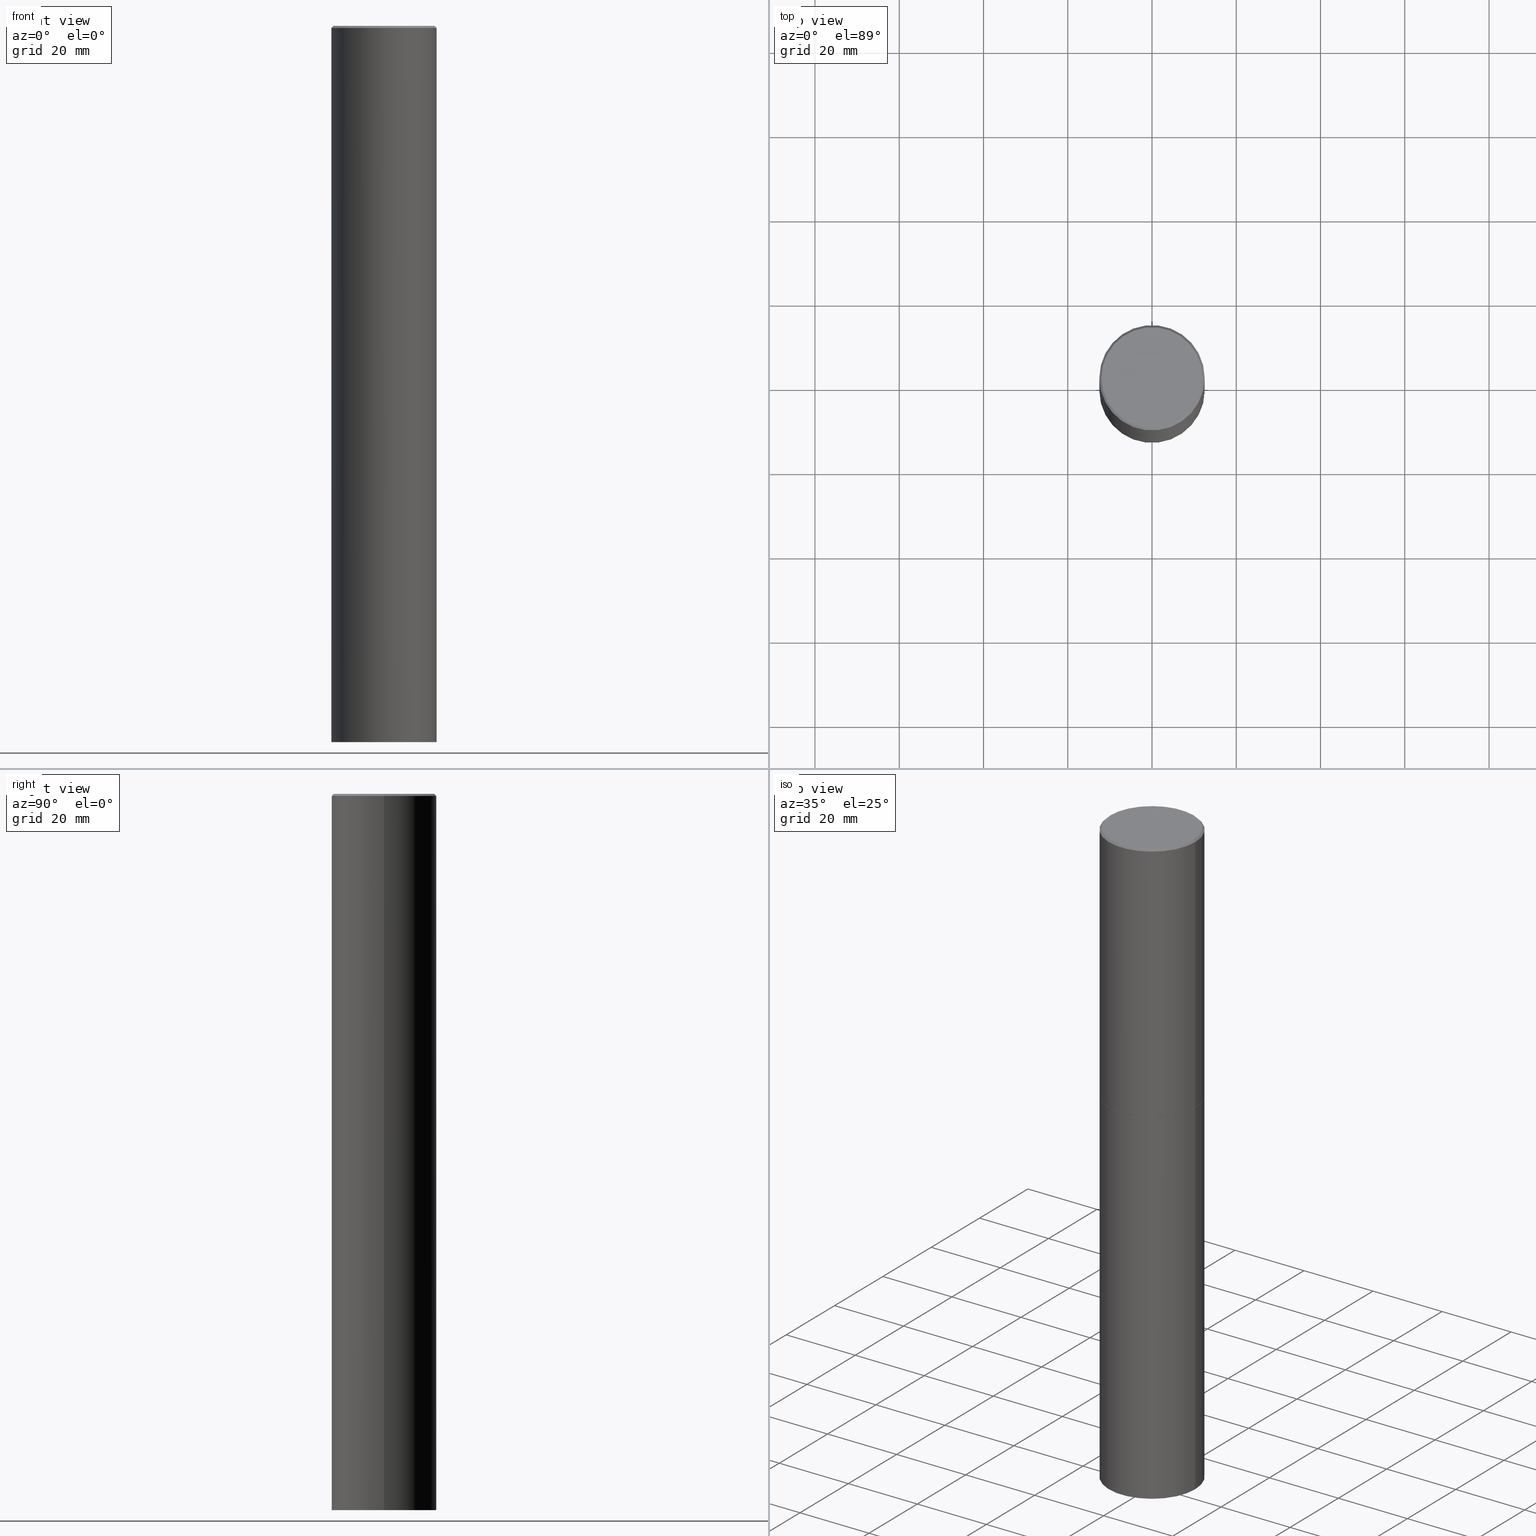
[diagram: canonical four-view strip — front | top / right | iso, engineering-drawing reading convention]
A machine part, canonical four-view strip (front | top / right | iso — engineering-drawing reading convention). The complete STEP part file that produces these views, byte-faithful:
ISO-10303-21;
HEADER;
FILE_DESCRIPTION (( 'STEP AP203' ),
    '1' );
FILE_NAME ('74896.STEP',
    '2024-05-03T15:04:39',
    ( '' ),
    ( '' ),
    'SwSTEP 2.0',
    'SolidWorks 2023',
    '' );
FILE_SCHEMA (( 'CONFIG_CONTROL_DESIGN' ));
ENDSEC;

DATA;
#1 = PLANE ( 'NONE',  #318 ) ;
#2 = LINE ( 'NONE', #257, #96 ) ;
#3 = EDGE_LOOP ( 'NONE', ( #47, #134, #273, #227 ) ) ;
#4 = APPROVAL_DATE_TIME ( #183, #337 ) ;
#5 = EDGE_LOOP ( 'NONE', ( #293, #251, #283, #277 ) ) ;
#6 = VERTEX_POINT ( 'NONE', #141 ) ;
#7 = CARTESIAN_POINT ( 'NONE',  ( 4.890937612370296805E-31, -6.982962677686323656E-17, -0.02000000000000009409 ) ) ;
#8 = DIRECTION ( 'NONE',  ( 1.000000000000000000, -6.982962677686265922E-15, 4.876006802227162976E-29 ) ) ;
#9 = CARTESIAN_POINT ( 'NONE',  ( 0.000000000000000000, 0.000000000000000000, 0.000000000000000000 ) ) ;
#10 = DIRECTION ( 'NONE',  ( 1.000000000000000000, -6.982962677686265922E-15, 4.876176775795935793E-29 ) ) ;
#11 = AXIS2_PLACEMENT_3D ( 'NONE', #209, #335, #327 ) ;
#12 = LOCAL_TIME ( 11, 4, 39.00000000000000000, #50 ) ;
#13 = ORIENTED_EDGE ( 'NONE', *, *, #329, .T. ) ;
#14 = ORIENTED_EDGE ( 'NONE', *, *, #226, .F. ) ;
#15 = PERSON_AND_ORGANIZATION ( #109, #336 ) ;
#16 = AXIS2_PLACEMENT_3D ( 'NONE', #231, #297, #347 ) ;
#17 = VERTEX_POINT ( 'NONE', #118 ) ;
#18 = DATE_AND_TIME ( #189, #12 ) ;
#19 = ADVANCED_FACE ( 'NONE', ( #137 ), #53, .F. ) ;
#20 = CARTESIAN_POINT ( 'NONE',  ( 0.4921499999999996988, -3.446223716380120377E-15, -0.02000000000000009409 ) ) ;
#21 = VERTEX_POINT ( 'NONE', #108 ) ;
#22 = LENGTH_MEASURE_WITH_UNIT ( LENGTH_MEASURE( 0.02539999999999999897 ), #144 );
#23 = VERTEX_POINT ( 'NONE', #55 ) ;
#24 = FACE_OUTER_BOUND ( 'NONE', #131, .T. ) ;
#25 = CIRCLE ( 'NONE', #309, 0.4921499999999996988 ) ;
#26 = CARTESIAN_POINT ( 'NONE',  ( 4.890937612370296805E-31, -6.982962677686323656E-17, -0.02000000000000009409 ) ) ;
#27 = DIRECTION ( 'NONE',  ( 2.438088387897960049E-29, -3.491481338843145188E-15, -1.000000000000000000 ) ) ;
#28 = DIRECTION ( 'NONE',  ( 2.445468806185136597E-29, -3.491481338843145583E-15, -1.000000000000000000 ) ) ;
#29 = ADVANCED_FACE ( 'NONE', ( #162 ), #364, .T. ) ;
#30 = DIRECTION ( 'NONE',  ( 1.000000000000000000, -6.982962677686265922E-15, 0.000000000000000000 ) ) ;
#31 = ORIENTED_EDGE ( 'NONE', *, *, #168, .F. ) ;
#32 = ORIENTED_EDGE ( 'NONE', *, *, #148, .T. ) ;
#33 = AXIS2_PLACEMENT_3D ( 'NONE', #196, #28, #258 ) ;
#34 = CARTESIAN_POINT ( 'NONE',  ( 0.4921499999999999764, -3.436665081823295777E-15, 2.399810400207969603E-29 ) ) ;
#35 = DIRECTION ( 'NONE',  ( -2.445468806185136597E-29, 3.491481338843145583E-15, 1.000000000000000000 ) ) ;
#36 = CC_DESIGN_DATE_AND_TIME_ASSIGNMENT ( #105, #333, ( #57 ) ) ;
#37 = DIRECTION ( 'NONE',  ( 2.445468806185136597E-29, -3.491481338843145583E-15, -1.000000000000000000 ) ) ;
#38 = CARTESIAN_POINT ( 'NONE',  ( -0.4921499999999999764, -1.299821836318722399E-14, -6.692899999999999849 ) ) ;
#39 = APPROVAL_PERSON_ORGANIZATION ( #240, #49, #338 ) ;
#40 = APPROVAL ( #102, 'UNSPECIFIED' ) ;
#41 = AXIS2_PLACEMENT_3D ( 'NONE', #219, #295, #65 ) ;
#42 = AXIS2_PLACEMENT_3D ( 'NONE', #63, #88, #142 ) ;
#43 = APPROVAL_DATE_TIME ( #305, #49 ) ;
#44 = VERTEX_POINT ( 'NONE', #69 ) ;
#45 =( NAMED_UNIT ( * ) PLANE_ANGLE_UNIT ( ) SI_UNIT ( $, .RADIAN. ) );
#46 = DIRECTION ( 'NONE',  ( -2.445468806185136597E-29, 3.491481338843145583E-15, 1.000000000000000000 ) ) ;
#47 = ORIENTED_EDGE ( 'NONE', *, *, #323, .T. ) ;
#48 = SECURITY_CLASSIFICATION_LEVEL ( 'unclassified' ) ;
#49 = APPROVAL ( #331, 'UNSPECIFIED' ) ;
#50 = COORDINATED_UNIVERSAL_TIME_OFFSET ( 5, 0, .BEHIND. ) ;
#51 = AXIS2_PLACEMENT_3D ( 'NONE', #116, #91, #230 ) ;
#52 = COORDINATED_UNIVERSAL_TIME_OFFSET ( 5, 0, .BEHIND. ) ;
#53 = PLANE ( 'NONE',  #261 ) ;
#54 = EDGE_LOOP ( 'NONE', ( #74, #281, #62, #14 ) ) ;
#55 = CARTESIAN_POINT ( 'NONE',  ( -0.4921499999999996988, 3.366835455046430506E-15, -0.02000000000000009409 ) ) ;
#56 = DIRECTION ( 'NONE',  ( -2.445468806185136597E-29, 3.491481338843145583E-15, 1.000000000000000000 ) ) ;
#57 = SECURITY_CLASSIFICATION ( '', '', #48 ) ;
#58 = ORIENTED_EDGE ( 'NONE', *, *, #323, .F. ) ;
#59 = EDGE_CURVE ( 'NONE', #6, #260, #181, .T. ) ;
#60 = MANIFOLD_SOLID_BREP ( 'Body-Move/Copy2[1]', #265 ) ;
#61 = CYLINDRICAL_SURFACE ( 'NONE', #302, 0.4921499999999998098 ) ;
#62 = ORIENTED_EDGE ( 'NONE', *, *, #94, .T. ) ;
#63 = CARTESIAN_POINT ( 'NONE',  ( 6.739467482965618232E-29, -9.622173421717824390E-15, -2.755900000000000016 ) ) ;
#64 = DIRECTION ( 'NONE',  ( 2.438088387897960049E-29, -3.491481338843145188E-15, -1.000000000000000000 ) ) ;
#65 = DIRECTION ( 'NONE',  ( 1.000000000000000000, -6.982962677686265922E-15, 0.000000000000000000 ) ) ;
#66 = VECTOR ( 'NONE', #173, 39.37007874015748143 ) ;
#67 = CARTESIAN_POINT ( 'NONE',  ( 3.436665081823363224E-15, 0.4921499999999903174, -2.755900000000001793 ) ) ;
#68 = DESIGN_CONTEXT ( 'detailed design', #276, 'design' ) ;
#69 = CARTESIAN_POINT ( 'NONE',  ( -0.4921499999999999764, -1.299821836318722399E-14, -2.755900000000000016 ) ) ;
#70 = CONICAL_SURFACE ( 'NONE', #33, 0.4921499999999996988, 0.7853981633974472798 ) ;
#71 = CALENDAR_DATE ( 2024, 3, 5 ) ;
#72 = VERTEX_POINT ( 'NONE', #241 ) ;
#73 = PERSON_AND_ORGANIZATION_ROLE ( 'creator' ) ;
#74 = ORIENTED_EDGE ( 'NONE', *, *, #239, .F. ) ;
#75 = CC_DESIGN_PERSON_AND_ORGANIZATION_ASSIGNMENT ( #15, #73, ( #363 ) ) ;
#76 = EDGE_LOOP ( 'NONE', ( #80, #290, #211, #307 ) ) ;
#77 = PERSON_AND_ORGANIZATION ( #109, #336 ) ;
#78 = CARTESIAN_POINT ( 'NONE',  ( 6.739467482965619353E-29, -9.622173421717825968E-15, -2.755900000000000460 ) ) ;
#79 = DIRECTION ( 'NONE',  ( 1.000000000000000000, -6.982962677686268288E-15, 0.000000000000000000 ) ) ;
#80 = ORIENTED_EDGE ( 'NONE', *, *, #85, .T. ) ;
#81 = EDGE_CURVE ( 'NONE', #104, #330, #301, .T. ) ;
#82 = AXIS2_PLACEMENT_3D ( 'NONE', #236, #238, #324 ) ;
#83 = CARTESIAN_POINT ( 'NONE',  ( 0.4921499999999999764, -2.680480053456658516E-14, -6.692899999999999849 ) ) ;
#84 = EDGE_LOOP ( 'NONE', ( #256, #31 ) ) ;
#85 = EDGE_CURVE ( 'NONE', #194, #249, #308, .T. ) ;
#86 = DIRECTION ( 'NONE',  ( -2.445468806185136597E-29, 3.491481338843145583E-15, 1.000000000000000000 ) ) ;
#87 = CYLINDRICAL_SURFACE ( 'NONE', #112, 0.4921499999999999764 ) ;
#88 = DIRECTION ( 'NONE',  ( -2.445468806185136597E-29, 3.491481338843145583E-15, 1.000000000000000000 ) ) ;
#89 = DIRECTION ( 'NONE',  ( -0.7071067811865467956, 2.468850131082249172E-15, -0.7071067811865482389 ) ) ;
#90 = AXIS2_PLACEMENT_3D ( 'NONE', #9, #346, #10 ) ;
#91 = DIRECTION ( 'NONE',  ( -2.445468806185136597E-29, 3.491481338843145583E-15, 1.000000000000000000 ) ) ;
#92 = CARTESIAN_POINT ( 'NONE',  ( 1.636727817291649966E-28, -2.336813545274328780E-14, -6.692899999999999849 ) ) ;
#93 = LINE ( 'NONE', #34, #357 ) ;
#94 = EDGE_CURVE ( 'NONE', #260, #23, #220, .T. ) ;
#95 = AXIS2_PLACEMENT_3D ( 'NONE', #303, #46, #152 ) ;
#96 = VECTOR ( 'NONE', #287, 39.37007874015748143 ) ;
#97 = CC_DESIGN_PERSON_AND_ORGANIZATION_ASSIGNMENT ( #99, #359, ( #57 ) ) ;
#98 = DIRECTION ( 'NONE',  ( -0.7071067811864267805, 7.493145998869918709E-15, 0.7071067811866682540 ) ) ;
#99 = PERSON_AND_ORGANIZATION ( #109, #336 ) ;
#100 = ORIENTED_EDGE ( 'NONE', *, *, #232, .F. ) ;
#101 = CONICAL_SURFACE ( 'NONE', #366, 0.4921499999999996988, 0.7853981633974472798 ) ;
#102 = APPROVAL_STATUS ( 'not_yet_approved' ) ;
#103 = ADVANCED_FACE ( 'NONE', ( #174 ), #101, .T. ) ;
#104 = VERTEX_POINT ( 'NONE', #145 ) ;
#105 = DATE_AND_TIME ( #218, #243 ) ;
#106 = APPROVAL_DATE_TIME ( #18, #40 ) ;
#107 = AXIS2_PLACEMENT_3D ( 'NONE', #284, #56, #110 ) ;
#108 = CARTESIAN_POINT ( 'NONE',  ( 0.4921499999999999764, -1.305883850354112017E-14, -2.755900000000000016 ) ) ;
#109 = PERSON ( 'UNSPECIFIED', 'UNSPECIFIED', 'UNSPECIFIED', ('UNSPECIFIED'), ('UNSPECIFIED'), ('UNSPECIFIED') ) ;
#110 = DIRECTION ( 'NONE',  ( 1.000000000000000000, -6.982962677686265922E-15, 0.000000000000000000 ) ) ;
#111 = ORIENTED_EDGE ( 'NONE', *, *, #239, .T. ) ;
#112 = AXIS2_PLACEMENT_3D ( 'NONE', #229, #198, #350 ) ;
#113 = ORIENTED_EDGE ( 'NONE', *, *, #155, .T. ) ;
#114 = CC_DESIGN_SECURITY_CLASSIFICATION ( #57, ( #326 ) ) ;
#115 = CC_DESIGN_PERSON_AND_ORGANIZATION_ASSIGNMENT ( #130, #361, ( #326 ) ) ;
#116 = CARTESIAN_POINT ( 'NONE',  ( 6.739467482965619353E-29, -9.622173421717825968E-15, -2.755900000000000460 ) ) ;
#117 = DIRECTION ( 'NONE',  ( -1.000000000000000000, 6.982962677686265922E-15, 0.000000000000000000 ) ) ;
#118 = CARTESIAN_POINT ( 'NONE',  ( -0.4911499999999999755, -6.127044320683872466E-15, -2.755900000000000460 ) ) ;
#119 = CARTESIAN_POINT ( 'NONE',  ( -0.4921499999999999764, -1.347319709534588852E-15, -2.754900000000000126 ) ) ;
#120 = CARTESIAN_POINT ( 'NONE',  ( -0.4921499999999996988, 3.366835455046430506E-15, -0.02000000000000009409 ) ) ;
#121 = CARTESIAN_POINT ( 'NONE',  ( 0.4921499999999998098, -3.436665081823294593E-15, 2.399810400207968762E-29 ) ) ;
#122 = EDGE_CURVE ( 'NONE', #330, #104, #157, .T. ) ;
#123 = CARTESIAN_POINT ( 'NONE',  ( 6.739467482965619353E-29, -9.622173421717825968E-15, -2.755900000000000460 ) ) ;
#124 = FACE_OUTER_BOUND ( 'NONE', #193, .T. ) ;
#125 = ADVANCED_FACE ( 'NONE', ( #320 ), #321, .T. ) ;
#126 = VECTOR ( 'NONE', #98, 39.37007874015748143 ) ;
#127 = ORIENTED_EDGE ( 'NONE', *, *, #135, .F. ) ;
#128 = APPROVAL_PERSON_ORGANIZATION ( #77, #337, #325 ) ;
#129 = ORIENTED_EDGE ( 'NONE', *, *, #59, .F. ) ;
#130 = PERSON_AND_ORGANIZATION ( #109, #336 ) ;
#131 = EDGE_LOOP ( 'NONE', ( #58, #127 ) ) ;
#132 = DIRECTION ( 'NONE',  ( 1.000000000000000000, 0.000000000000000000, 0.000000000000000000 ) ) ;
#133 = PLANE ( 'NONE',  #204 ) ;
#134 = ORIENTED_EDGE ( 'NONE', *, *, #232, .T. ) ;
#135 = EDGE_CURVE ( 'NONE', #17, #247, #140, .T. ) ;
#136 = VECTOR ( 'NONE', #89, 39.37007874015748143 ) ;
#137 = FACE_OUTER_BOUND ( 'NONE', #161, .T. ) ;
#138 = ORIENTED_EDGE ( 'NONE', *, *, #122, .F. ) ;
#139 = EDGE_CURVE ( 'NONE', #194, #21, #93, .T. ) ;
#140 = CIRCLE ( 'NONE', #253, 0.4911499999999999755 ) ;
#141 = CARTESIAN_POINT ( 'NONE',  ( 0.4721499999999996255, -3.342703923013973396E-15, 8.537024980224040028E-18 ) ) ;
#142 = DIRECTION ( 'NONE',  ( 1.000000000000000000, -6.982962677686265922E-15, 0.000000000000000000 ) ) ;
#143 = LINE ( 'NONE', #120, #136 ) ;
#144 =( LENGTH_UNIT ( ) NAMED_UNIT ( * ) SI_UNIT ( $, .METRE. ) );
#145 = CARTESIAN_POINT ( 'NONE',  ( 0.4921499999999999764, -1.305534702220227716E-14, -2.754900000000000126 ) ) ;
#146 = CIRCLE ( 'NONE', #107, 0.4921499999999999764 ) ;
#147 = LINE ( 'NONE', #121, #349 ) ;
#148 = EDGE_CURVE ( 'NONE', #44, #21, #353, .T. ) ;
#149 = CIRCLE ( 'NONE', #51, 0.4911499999999999755 ) ;
#150 = PRODUCT_DEFINITION_SHAPE ( 'NONE', 'NONE',  #363 ) ;
#151 = PERSON_AND_ORGANIZATION_ROLE ( 'design_supplier' ) ;
#152 = DIRECTION ( 'NONE',  ( 1.000000000000000000, -6.982962677686265922E-15, 0.000000000000000000 ) ) ;
#153 =( CONVERSION_BASED_UNIT ( 'INCH', #22 ) LENGTH_UNIT ( ) NAMED_UNIT ( #225 ) );
#154 = EDGE_LOOP ( 'NONE', ( #315, #185, #360, #340 ) ) ;
#155 = EDGE_CURVE ( 'NONE', #330, #23, #319, .T. ) ;
#156 = DIRECTION ( 'NONE',  ( -2.445468806185136597E-29, 3.491481338843145583E-15, 1.000000000000000000 ) ) ;
#157 = CIRCLE ( 'NONE', #16, 0.4921499999999999764 ) ;
#158 = APPROVAL_ROLE ( '' ) ;
#159 = ORIENTED_EDGE ( 'NONE', *, *, #208, .F. ) ;
#160 = CC_DESIGN_PERSON_AND_ORGANIZATION_ASSIGNMENT ( #271, #151, ( #326 ) ) ;
#161 = EDGE_LOOP ( 'NONE', ( #188, #111 ) ) ;
#162 = FACE_OUTER_BOUND ( 'NONE', #3, .T. ) ;
#163 = DIRECTION ( 'NONE',  ( 1.000000000000000000, -6.982962677686265922E-15, 4.876176775795935793E-29 ) ) ;
#164 = APPLICATION_CONTEXT ( 'configuration controlled 3d designs of mechanical parts and assemblies' ) ;
#165 = LOCAL_TIME ( 11, 4, 39.00000000000000000, #300 ) ;
#166 = CARTESIAN_POINT ( 'NONE',  ( 6.739467482965619353E-29, -9.622173421717825968E-15, -2.755900000000000460 ) ) ;
#167 = DIRECTION ( 'NONE',  ( -2.445468806185136597E-29, 3.491481338843145583E-15, 1.000000000000000000 ) ) ;
#168 = EDGE_CURVE ( 'NONE', #249, #194, #237, .T. ) ;
#169 = CARTESIAN_POINT ( 'NONE',  ( 0.000000000000000000, 0.000000000000000000, 0.000000000000000000 ) ) ;
#170 = CLOSED_SHELL ( 'NONE', ( #29, #255, #103, #356, #203, #263, #299, #19 ) ) ;
#171 = CARTESIAN_POINT ( 'NONE',  ( -2.087702828670439639E-46, 2.980686340760894400E-32, 8.537024980200822558E-18 ) ) ;
#172 = APPROVAL_PERSON_ORGANIZATION ( #180, #40, #158 ) ;
#173 = DIRECTION ( 'NONE',  ( -2.445468806185136877E-29, 3.491481338843145188E-15, 1.000000000000000000 ) ) ;
#174 = FACE_OUTER_BOUND ( 'NONE', #54, .T. ) ;
#175 = CARTESIAN_POINT ( 'NONE',  ( 0.4911499999999999755, -1.305185554086343731E-14, -2.755900000000000460 ) ) ;
#176 = CARTESIAN_POINT ( 'NONE',  ( -0.4911499999999999755, -6.132342775032094079E-15, -2.755900000000000460 ) ) ;
#177 = LOCAL_TIME ( 11, 4, 39.00000000000000000, #52 ) ;
#178 = LINE ( 'NONE', #298, #262 ) ;
#179 = CC_DESIGN_DATE_AND_TIME_ASSIGNMENT ( #222, #207, ( #363 ) ) ;
#180 = PERSON_AND_ORGANIZATION ( #109, #336 ) ;
#181 = LINE ( 'NONE', #20, #200 ) ;
#182 = AXIS2_PLACEMENT_3D ( 'NONE', #92, #233, #30 ) ;
#183 = DATE_AND_TIME ( #71, #177 ) ;
#184 = ADVANCED_FACE ( 'NONE', ( #202 ), #87, .T. ) ;
#185 = ORIENTED_EDGE ( 'NONE', *, *, #168, .T. ) ;
#186 = CALENDAR_DATE ( 2024, 3, 5 ) ;
#187 = CARTESIAN_POINT ( 'NONE',  ( 0.000000000000000000, 0.000000000000000000, 0.000000000000000000 ) ) ;
#188 = ORIENTED_EDGE ( 'NONE', *, *, #208, .T. ) ;
#189 = CALENDAR_DATE ( 2024, 3, 5 ) ;
#190 = CARTESIAN_POINT ( 'NONE',  ( 0.4921499999999996988, -3.446223716380120377E-15, -0.02000000000000009409 ) ) ;
#191 = COORDINATED_UNIVERSAL_TIME_OFFSET ( 5, 0, .BEHIND. ) ;
#192 = CARTESIAN_POINT ( 'NONE',  ( 6.739467482965618232E-29, -9.622173421717824390E-15, -2.755900000000000016 ) ) ;
#193 = EDGE_LOOP ( 'NONE', ( #358, #113, #244, #215 ) ) ;
#194 = VERTEX_POINT ( 'NONE', #83 ) ;
#195 = CC_DESIGN_APPROVAL ( #40, ( #363 ) ) ;
#196 = CARTESIAN_POINT ( 'NONE',  ( 4.890937612370296805E-31, -6.982962677686323656E-17, -0.02000000000000009409 ) ) ;
#197 = FACE_OUTER_BOUND ( 'NONE', #5, .T. ) ;
#198 = DIRECTION ( 'NONE',  ( -2.445468806185136597E-29, 3.491481338843145583E-15, 1.000000000000000000 ) ) ;
#199 = FACE_OUTER_BOUND ( 'NONE', #84, .T. ) ;
#200 = VECTOR ( 'NONE', #362, 39.37007874015748143 ) ;
#201 = LINE ( 'NONE', #176, #126 ) ;
#202 = FACE_OUTER_BOUND ( 'NONE', #154, .T. ) ;
#203 = ADVANCED_FACE ( 'NONE', ( #197 ), #61, .T. ) ;
#204 = AXIS2_PLACEMENT_3D ( 'NONE', #192, #312, #163 ) ;
#205 = UNCERTAINTY_MEASURE_WITH_UNIT (LENGTH_MEASURE( 1.000000000000000082E-05 ), #153, 'distance_accuracy_value', 'NONE');
#206 = PRODUCT ( '74896', '74896', '', ( #242 ) ) ;
#207 = DATE_TIME_ROLE ( 'creation_date' ) ;
#208 = EDGE_CURVE ( 'NONE', #72, #6, #343, .T. ) ;
#209 = CARTESIAN_POINT ( 'NONE',  ( 1.636727817291649966E-28, -2.336813545274328780E-14, -6.692899999999999849 ) ) ;
#210 = CC_DESIGN_APPROVAL ( #49, ( #326 ) ) ;
#211 = ORIENTED_EDGE ( 'NONE', *, *, #291, .F. ) ;
#212 = CC_DESIGN_APPROVAL ( #337, ( #57 ) ) ;
#213 = CARTESIAN_POINT ( 'NONE',  ( 0.000000000000000000, 0.000000000000000000, 0.000000000000000000 ) ) ;
#214 = CYLINDRICAL_SURFACE ( 'NONE', #252, 0.4921499999999998098 ) ;
#215 = ORIENTED_EDGE ( 'NONE', *, *, #246, .F. ) ;
#216 = COORDINATED_UNIVERSAL_TIME_OFFSET ( 5, 0, .BEHIND. ) ;
#217 = DIRECTION ( 'NONE',  ( 1.000000000000000000, -6.982962677686265922E-15, 4.876176775795935793E-29 ) ) ;
#218 = CALENDAR_DATE ( 2024, 3, 5 ) ;
#219 = CARTESIAN_POINT ( 'NONE',  ( 4.890937612370296805E-31, -6.982962677686323656E-17, -0.02000000000000009409 ) ) ;
#220 = CIRCLE ( 'NONE', #41, 0.4921499999999996988 ) ;
#221 = CIRCLE ( 'NONE', #82, 0.4721499999999996255 ) ;
#222 = DATE_AND_TIME ( #186, #269 ) ;
#223 = FACE_OUTER_BOUND ( 'NONE', #285, .T. ) ;
#224 = PLANE ( 'NONE',  #314 ) ;
#225 = DIMENSIONAL_EXPONENTS ( 1.000000000000000000, 0.000000000000000000, 0.000000000000000000, 0.000000000000000000, 0.000000000000000000, 0.000000000000000000, 0.000000000000000000 ) ;
#226 = EDGE_CURVE ( 'NONE', #72, #23, #143, .T. ) ;
#227 = ORIENTED_EDGE ( 'NONE', *, *, #329, .F. ) ;
#228 = AXIS2_PLACEMENT_3D ( 'NONE', #171, #35, #8 ) ;
#229 = CARTESIAN_POINT ( 'NONE',  ( 0.000000000000000000, 0.000000000000000000, 0.000000000000000000 ) ) ;
#230 = DIRECTION ( 'NONE',  ( 1.000000000000000000, -6.982962677686268288E-15, 0.000000000000000000 ) ) ;
#231 = CARTESIAN_POINT ( 'NONE',  ( 6.737022014159432629E-29, -9.618681940378981383E-15, -2.754900000000000126 ) ) ;
#232 = EDGE_CURVE ( 'NONE', #17, #330, #201, .T. ) ;
#233 = DIRECTION ( 'NONE',  ( -2.445468806185136597E-29, 3.491481338843145583E-15, 1.000000000000000000 ) ) ;
#234 = CARTESIAN_POINT ( 'NONE',  ( -0.4921499999999998098, 3.496936074043331714E-15, -2.420853904668950949E-29 ) ) ;
#235 = DIRECTION ( 'NONE',  ( -1.000000000000000000, 6.982962677686265922E-15, -4.876176775795935793E-29 ) ) ;
#236 = CARTESIAN_POINT ( 'NONE',  ( -2.087702828670439639E-46, 2.980686340760894400E-32, 8.537024980200822558E-18 ) ) ;
#237 = CIRCLE ( 'NONE', #182, 0.4921499999999999764 ) ;
#238 = DIRECTION ( 'NONE',  ( -2.445468806185136597E-29, 3.491481338843145583E-15, 1.000000000000000000 ) ) ;
#239 = EDGE_CURVE ( 'NONE', #6, #72, #221, .T. ) ;
#240 = PERSON_AND_ORGANIZATION ( #109, #336 ) ;
#241 = CARTESIAN_POINT ( 'NONE',  ( -0.4721499999999996255, 3.331920641657999252E-15, 8.537024980177643606E-18 ) ) ;
#242 = MECHANICAL_CONTEXT ( 'NONE', #164, 'mechanical' ) ;
#243 = LOCAL_TIME ( 11, 4, 39.00000000000000000, #191 ) ;
#244 = ORIENTED_EDGE ( 'NONE', *, *, #94, .F. ) ;
#245 = CALENDAR_DATE ( 2024, 3, 5 ) ;
#246 = EDGE_CURVE ( 'NONE', #104, #260, #147, .T. ) ;
#247 = VERTEX_POINT ( 'NONE', #175 ) ;
#248 = PERSON_AND_ORGANIZATION_ROLE ( 'design_owner' ) ;
#249 = VERTEX_POINT ( 'NONE', #38 ) ;
#250 = CARTESIAN_POINT ( 'NONE',  ( 3.297005828269567997E-15, 0.4721499999999996255, -1.644234401644689488E-15 ) ) ;
#251 = ORIENTED_EDGE ( 'NONE', *, *, #122, .T. ) ;
#252 = AXIS2_PLACEMENT_3D ( 'NONE', #187, #156, #217 ) ;
#253 = AXIS2_PLACEMENT_3D ( 'NONE', #123, #86, #351 ) ;
#254 = DIRECTION ( 'NONE',  ( 1.000000000000000000, -6.982962677686265922E-15, 0.000000000000000000 ) ) ;
#255 = ADVANCED_FACE ( 'NONE', ( #124 ), #214, .T. ) ;
#256 = ORIENTED_EDGE ( 'NONE', *, *, #85, .F. ) ;
#257 = CARTESIAN_POINT ( 'NONE',  ( -0.4921499999999999764, 3.496936074043332897E-15, -2.420853904668951509E-29 ) ) ;
#258 = DIRECTION ( 'NONE',  ( -1.000000000000000000, 6.982962677686265922E-15, 0.000000000000000000 ) ) ;
#259 = ORIENTED_EDGE ( 'NONE', *, *, #226, .T. ) ;
#260 = VERTEX_POINT ( 'NONE', #190 ) ;
#261 = AXIS2_PLACEMENT_3D ( 'NONE', #250, #339, #365 ) ;
#262 = VECTOR ( 'NONE', #345, 39.37007874015748143 ) ;
#263 = ADVANCED_FACE ( 'NONE', ( #334 ), #266, .T. ) ;
#264 = ADVANCED_BREP_SHAPE_REPRESENTATION ( '74896', ( #60, #306, #296 ), #294 ) ;
#265 = CLOSED_SHELL ( 'NONE', ( #125, #342, #311, #184 ) ) ;
#266 = CONICAL_SURFACE ( 'NONE', #322, 0.4911499999999999755, 0.7853981633972775267 ) ;
#267 = EDGE_CURVE ( 'NONE', #23, #260, #25, .T. ) ;
#268 = DIRECTION ( 'NONE',  ( -2.445468806185136877E-29, 3.491481338843145188E-15, 1.000000000000000000 ) ) ;
#269 = LOCAL_TIME ( 11, 4, 39.00000000000000000, #216 ) ;
#270 = PRODUCT_RELATED_PRODUCT_CATEGORY ( 'detail', '', ( #206 ) ) ;
#271 = PERSON_AND_ORGANIZATION ( #109, #336 ) ;
#272 = EDGE_LOOP ( 'NONE', ( #304, #32 ) ) ;
#273 = ORIENTED_EDGE ( 'NONE', *, *, #81, .F. ) ;
#274 = CC_DESIGN_PERSON_AND_ORGANIZATION_ASSIGNMENT ( #275, #248, ( #206 ) ) ;
#275 = PERSON_AND_ORGANIZATION ( #109, #336 ) ;
#276 = APPLICATION_CONTEXT ( 'configuration controlled 3d designs of mechanical parts and assemblies' ) ;
#277 = ORIENTED_EDGE ( 'NONE', *, *, #267, .F. ) ;
#278 = DIRECTION ( 'NONE',  ( 0.000000000000000000, 0.000000000000000000, 1.000000000000000000 ) ) ;
#279 = DIRECTION ( 'NONE',  ( -2.445468806185136597E-29, 3.491481338843145583E-15, 1.000000000000000000 ) ) ;
#280 = DIRECTION ( 'NONE',  ( 1.000000000000000000, -6.982962677686268288E-15, 0.000000000000000000 ) ) ;
#281 = ORIENTED_EDGE ( 'NONE', *, *, #59, .T. ) ;
#282 =( NAMED_UNIT ( * ) SI_UNIT ( $, .STERADIAN. ) SOLID_ANGLE_UNIT ( ) );
#283 = ORIENTED_EDGE ( 'NONE', *, *, #246, .T. ) ;
#284 = CARTESIAN_POINT ( 'NONE',  ( 6.739467482965618232E-29, -9.622173421717824390E-15, -2.755900000000000016 ) ) ;
#285 = EDGE_LOOP ( 'NONE', ( #129, #159, #259, #344 ) ) ;
#286 = SHAPE_DEFINITION_REPRESENTATION ( #150, #264 ) ;
#287 = DIRECTION ( 'NONE',  ( -2.445468806185136877E-29, 3.491481338843145188E-15, 1.000000000000000000 ) ) ;
#288 = FACE_OUTER_BOUND ( 'NONE', #272, .T. ) ;
#289 = DIRECTION ( 'NONE',  ( -2.445468806185136597E-29, 3.491481338843145583E-15, 1.000000000000000000 ) ) ;
#290 = ORIENTED_EDGE ( 'NONE', *, *, #352, .T. ) ;
#291 = EDGE_CURVE ( 'NONE', #21, #44, #146, .T. ) ;
#292 = DIRECTION ( 'NONE',  ( 1.000000000000000000, -6.982962677686265922E-15, 4.876176775795935793E-29 ) ) ;
#293 = ORIENTED_EDGE ( 'NONE', *, *, #155, .F. ) ;
#294 =( GEOMETRIC_REPRESENTATION_CONTEXT ( 3 ) GLOBAL_UNCERTAINTY_ASSIGNED_CONTEXT ( ( #205 ) ) GLOBAL_UNIT_ASSIGNED_CONTEXT ( ( #153, #45, #282 ) ) REPRESENTATION_CONTEXT ( 'NONE', 'WORKASPACE' ) );
#295 = DIRECTION ( 'NONE',  ( -2.445468806185136597E-29, 3.491481338843145583E-15, 1.000000000000000000 ) ) ;
#296 = AXIS2_PLACEMENT_3D ( 'NONE', #213, #278, #132 ) ;
#297 = DIRECTION ( 'NONE',  ( -2.445468806185136597E-29, 3.491481338843145583E-15, 1.000000000000000000 ) ) ;
#298 = CARTESIAN_POINT ( 'NONE',  ( 0.4911499999999999755, -1.305185554086343731E-14, -2.755900000000000460 ) ) ;
#299 = ADVANCED_FACE ( 'NONE', ( #24 ), #133, .F. ) ;
#300 = COORDINATED_UNIVERSAL_TIME_OFFSET ( 5, 0, .BEHIND. ) ;
#301 = CIRCLE ( 'NONE', #95, 0.4921499999999999764 ) ;
#302 = AXIS2_PLACEMENT_3D ( 'NONE', #169, #348, #292 ) ;
#303 = CARTESIAN_POINT ( 'NONE',  ( 6.737022014159432629E-29, -9.618681940378981383E-15, -2.754900000000000126 ) ) ;
#304 = ORIENTED_EDGE ( 'NONE', *, *, #291, .T. ) ;
#305 = DATE_AND_TIME ( #245, #165 ) ;
#306 = MANIFOLD_SOLID_BREP ( 'Body-Move/Copy2[2]', #170 ) ;
#307 = ORIENTED_EDGE ( 'NONE', *, *, #139, .F. ) ;
#308 = CIRCLE ( 'NONE', #11, 0.4921499999999999764 ) ;
#309 = AXIS2_PLACEMENT_3D ( 'NONE', #26, #167, #254 ) ;
#310 = APPROVAL_STATUS ( 'not_yet_approved' ) ;
#311 = ADVANCED_FACE ( 'NONE', ( #288 ), #1, .F. ) ;
#312 = DIRECTION ( 'NONE',  ( -2.438088387897960049E-29, 3.491481338843145188E-15, 1.000000000000000000 ) ) ;
#313 = CARTESIAN_POINT ( 'NONE',  ( 3.436665081823459465E-15, 0.4921499999999766062, -6.692900000000002514 ) ) ;
#314 = AXIS2_PLACEMENT_3D ( 'NONE', #313, #27, #341 ) ;
#315 = ORIENTED_EDGE ( 'NONE', *, *, #352, .F. ) ;
#316 = DIRECTION ( 'NONE',  ( -2.445468806185136877E-29, 3.491481338843145188E-15, 1.000000000000000000 ) ) ;
#317 = AXIS2_PLACEMENT_3D ( 'NONE', #166, #289, #280 ) ;
#318 = AXIS2_PLACEMENT_3D ( 'NONE', #67, #64, #235 ) ;
#319 = LINE ( 'NONE', #234, #66 ) ;
#320 = FACE_OUTER_BOUND ( 'NONE', #76, .T. ) ;
#321 = CYLINDRICAL_SURFACE ( 'NONE', #90, 0.4921499999999999764 ) ;
#322 = AXIS2_PLACEMENT_3D ( 'NONE', #78, #279, #79 ) ;
#323 = EDGE_CURVE ( 'NONE', #247, #17, #149, .T. ) ;
#324 = DIRECTION ( 'NONE',  ( 1.000000000000000000, -6.982962677686265922E-15, 4.876006802227162976E-29 ) ) ;
#325 = APPROVAL_ROLE ( '' ) ;
#326 = PRODUCT_DEFINITION_FORMATION_WITH_SPECIFIED_SOURCE ( 'ANY', '', #206, .NOT_KNOWN. ) ;
#327 = DIRECTION ( 'NONE',  ( 1.000000000000000000, -6.982962677686265922E-15, 0.000000000000000000 ) ) ;
#328 = ORIENTED_EDGE ( 'NONE', *, *, #135, .T. ) ;
#329 = EDGE_CURVE ( 'NONE', #247, #104, #178, .T. ) ;
#330 = VERTEX_POINT ( 'NONE', #119 ) ;
#331 = APPROVAL_STATUS ( 'not_yet_approved' ) ;
#332 = EDGE_LOOP ( 'NONE', ( #100, #328, #13, #138 ) ) ;
#333 = DATE_TIME_ROLE ( 'classification_date' ) ;
#334 = FACE_OUTER_BOUND ( 'NONE', #332, .T. ) ;
#335 = DIRECTION ( 'NONE',  ( -2.445468806185136597E-29, 3.491481338843145583E-15, 1.000000000000000000 ) ) ;
#336 = ORGANIZATION ( 'UNSPECIFIED', 'UNSPECIFIED', '' ) ;
#337 = APPROVAL ( #310, 'UNSPECIFIED' ) ;
#338 = APPROVAL_ROLE ( '' ) ;
#339 = DIRECTION ( 'NONE',  ( 2.438088387897960049E-29, -3.491481338843145188E-15, -1.000000000000000000 ) ) ;
#340 = ORIENTED_EDGE ( 'NONE', *, *, #148, .F. ) ;
#341 = DIRECTION ( 'NONE',  ( -1.000000000000000000, 6.982962677686265922E-15, -4.876176775795935793E-29 ) ) ;
#342 = ADVANCED_FACE ( 'NONE', ( #199 ), #224, .T. ) ;
#343 = CIRCLE ( 'NONE', #228, 0.4721499999999996255 ) ;
#344 = ORIENTED_EDGE ( 'NONE', *, *, #267, .T. ) ;
#345 = DIRECTION ( 'NONE',  ( 0.7071067811864267805, -2.468850131080992517E-15, 0.7071067811866682540 ) ) ;
#346 = DIRECTION ( 'NONE',  ( -2.445468806185136597E-29, 3.491481338843145583E-15, 1.000000000000000000 ) ) ;
#347 = DIRECTION ( 'NONE',  ( 1.000000000000000000, -6.982962677686265922E-15, 0.000000000000000000 ) ) ;
#348 = DIRECTION ( 'NONE',  ( -2.445468806185136597E-29, 3.491481338843145583E-15, 1.000000000000000000 ) ) ;
#349 = VECTOR ( 'NONE', #268, 39.37007874015748143 ) ;
#350 = DIRECTION ( 'NONE',  ( 1.000000000000000000, -6.982962677686265922E-15, 4.876176775795935793E-29 ) ) ;
#351 = DIRECTION ( 'NONE',  ( 1.000000000000000000, -6.982962677686268288E-15, 0.000000000000000000 ) ) ;
#352 = EDGE_CURVE ( 'NONE', #249, #44, #2, .T. ) ;
#353 = CIRCLE ( 'NONE', #42, 0.4921499999999999764 ) ;
#354 = APPLICATION_PROTOCOL_DEFINITION ( 'international standard', 'config_control_design', 1994, #164 ) ;
#355 = APPLICATION_PROTOCOL_DEFINITION ( 'international standard', 'config_control_design', 1994, #276 ) ;
#356 = ADVANCED_FACE ( 'NONE', ( #223 ), #70, .T. ) ;
#357 = VECTOR ( 'NONE', #316, 39.37007874015748143 ) ;
#358 = ORIENTED_EDGE ( 'NONE', *, *, #81, .T. ) ;
#359 = PERSON_AND_ORGANIZATION_ROLE ( 'classification_officer' ) ;
#360 = ORIENTED_EDGE ( 'NONE', *, *, #139, .T. ) ;
#361 = PERSON_AND_ORGANIZATION_ROLE ( 'creator' ) ;
#362 = DIRECTION ( 'NONE',  ( 0.7071067811865467956, -7.319954787623254468E-15, -0.7071067811865482389 ) ) ;
#363 = PRODUCT_DEFINITION ( 'UNKNOWN', '', #326, #68 ) ;
#364 = CONICAL_SURFACE ( 'NONE', #317, 0.4911499999999999755, 0.7853981633972775267 ) ;
#365 = DIRECTION ( 'NONE',  ( -1.000000000000000000, 6.982962677686265922E-15, -4.876176775795935793E-29 ) ) ;
#366 = AXIS2_PLACEMENT_3D ( 'NONE', #7, #37, #117 ) ;
ENDSEC;
END-ISO-10303-21;
